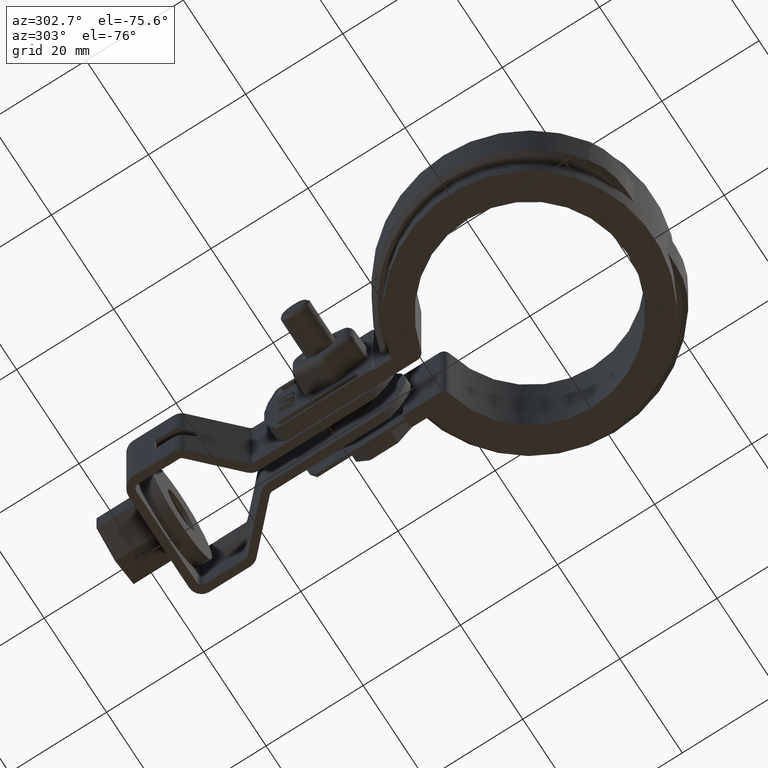
[diagram: clean part render]
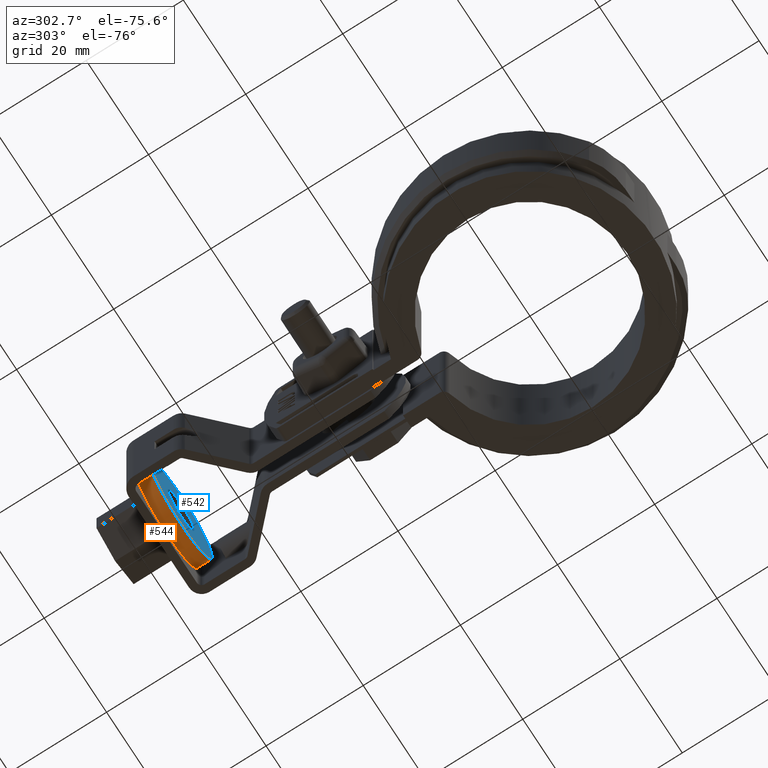
[diagram: same view with the hole feature highlighted: cylindrical wall and planar end face, labeled with their STEP entity ids]
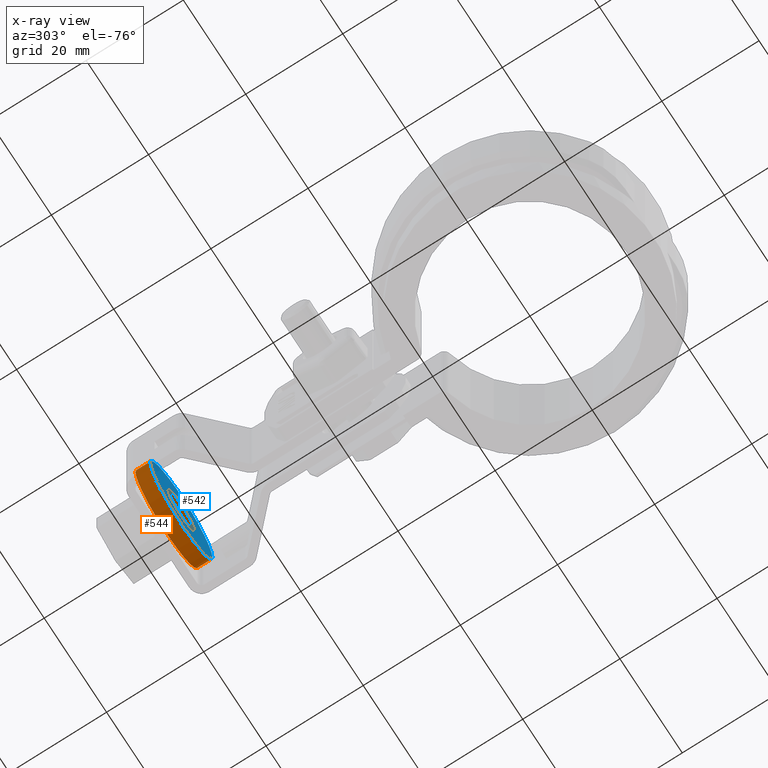
[diagram: x-ray of the same camera — body ghosted, the hole faces saturated]
A machine part, auxiliary view. The highlighted faces form one hole feature of diameter 20 mm: the cylindrical wall (entity #544, orange) and its adjacent planar end face (entity #542, blue) — they share a circular edge in the B-rep.
The next image is the same camera in x-ray (body ghosted, the hole faces saturated) — the bore reads through the body.
Wall:
#544 = ADVANCED_FACE( '', ( #1085, #1086 ), #1087, .T. );
#1085 = FACE_OUTER_BOUND( '', #2194, .T. );
#1086 = FACE_OUTER_BOUND( '', #2195, .T. );
#1087 = CYLINDRICAL_SURFACE( '', #2196, 10.0000000000000 );
#2194 = EDGE_LOOP( '', ( #5299 ) );
#2195 = EDGE_LOOP( '', ( #5300 ) );
#2196 = AXIS2_PLACEMENT_3D( '', #5301, #5302, #5303 );
#5299 = ORIENTED_EDGE( '', *, *, #7127, .T. );
#5300 = ORIENTED_EDGE( '', *, *, #7116, .F. );
#5301 = CARTESIAN_POINT( '', ( 4.31973178515162E-013, 71.8025110200043, -12.5000000000246 ) );
#5302 = DIRECTION( '', ( 9.21184560650170E-016, -1.00000000000000, -1.26121335597421E-013 ) );
#5303 = DIRECTION( '', ( 1.00000000000000, 9.21184560649447E-016, 5.73783117496114E-015 ) );
#7116 = EDGE_CURVE( '', #8409, #8409, #8410, .T. );
#7127 = EDGE_CURVE( '', #8428, #8428, #8429, .T. );
#8409 = VERTEX_POINT( '', #11925 );
#8410 = CIRCLE( '', #11926, 10.0000000000000 );
#8428 = VERTEX_POINT( '', #11953 );
#8429 = CIRCLE( '', #11954, 10.0000000000000 );
#11925 = CARTESIAN_POINT( '', ( 10.0000000000004, 74.8025110200043, -12.5000000000242 ) );
#11926 = AXIS2_PLACEMENT_3D( '', #13681, #13682, #13683 );
#11953 = CARTESIAN_POINT( '', ( 10.0000000000004, 71.8025110200043, -12.5000000000246 ) );
#11954 = AXIS2_PLACEMENT_3D( '', #13696, #13697, #13698 );
#13681 = CARTESIAN_POINT( '', ( 4.29209624833212E-013, 74.8025110200043, -12.5000000000243 ) );
#13682 = DIRECTION( '', ( -9.21184560650170E-016, 1.00000000000000, 1.26121335597421E-013 ) );
#13683 = DIRECTION( '', ( 1.00000000000000, 9.21184560649447E-016, 5.73783117496114E-015 ) );
#13696 = CARTESIAN_POINT( '', ( 4.31973178515162E-013, 71.8025110200043, -12.5000000000246 ) );
#13697 = DIRECTION( '', ( -9.21184560650170E-016, 1.00000000000000, 1.26121335597421E-013 ) );
#13698 = DIRECTION( '', ( 1.00000000000000, 9.21184560649447E-016, 5.73783117496114E-015 ) );
End face:
#542 = ADVANCED_FACE( '', ( #1079, #1080 ), #1081, .F. );
#1079 = FACE_BOUND( '', #2188, .T. );
#1080 = FACE_OUTER_BOUND( '', #2189, .T. );
#1081 = PLANE( '', #2190 );
#2188 = EDGE_LOOP( '', ( #5289 ) );
#2189 = EDGE_LOOP( '', ( #5290 ) );
#2190 = AXIS2_PLACEMENT_3D( '', #5291, #5292, #5293 );
#5289 = ORIENTED_EDGE( '', *, *, #7126, .T. );
#5290 = ORIENTED_EDGE( '', *, *, #7127, .F. );
#5291 = CARTESIAN_POINT( '', ( 4.31973178515162E-013, 71.8025110200043, -12.5000000000246 ) );
#5292 = DIRECTION( '', ( -9.21184560650171E-016, 1.00000000000000, 1.26121335597421E-013 ) );
#5293 = DIRECTION( '', ( 1.00000000000000, 9.21184560649447E-016, 5.73783117496114E-015 ) );
#7126 = EDGE_CURVE( '', #8426, #8426, #8427, .T. );
#7127 = EDGE_CURVE( '', #8428, #8428, #8429, .T. );
#8426 = VERTEX_POINT( '', #11951 );
#8427 = CIRCLE( '', #11952, 4.25000000000000 );
#8428 = VERTEX_POINT( '', #11953 );
#8429 = CIRCLE( '', #11954, 10.0000000000000 );
#11951 = CARTESIAN_POINT( '', ( 4.25000000000043, 71.8025110200043, -12.5000000000246 ) );
#11952 = AXIS2_PLACEMENT_3D( '', #13693, #13694, #13695 );
#11953 = CARTESIAN_POINT( '', ( 10.0000000000004, 71.8025110200043, -12.5000000000246 ) );
#11954 = AXIS2_PLACEMENT_3D( '', #13696, #13697, #13698 );
#13693 = CARTESIAN_POINT( '', ( 4.29804774170191E-013, 71.8025110200043, -12.5000000000246 ) );
#13694 = DIRECTION( '', ( -9.21184560650171E-016, 1.00000000000000, 1.26121335597421E-013 ) );
#13695 = DIRECTION( '', ( 1.00000000000000, 9.21184560649447E-016, 5.73783117496114E-015 ) );
#13696 = CARTESIAN_POINT( '', ( 4.31973178515162E-013, 71.8025110200043, -12.5000000000246 ) );
#13697 = DIRECTION( '', ( -9.21184560650170E-016, 1.00000000000000, 1.26121335597421E-013 ) );
#13698 = DIRECTION( '', ( 1.00000000000000, 9.21184560649447E-016, 5.73783117496114E-015 ) );